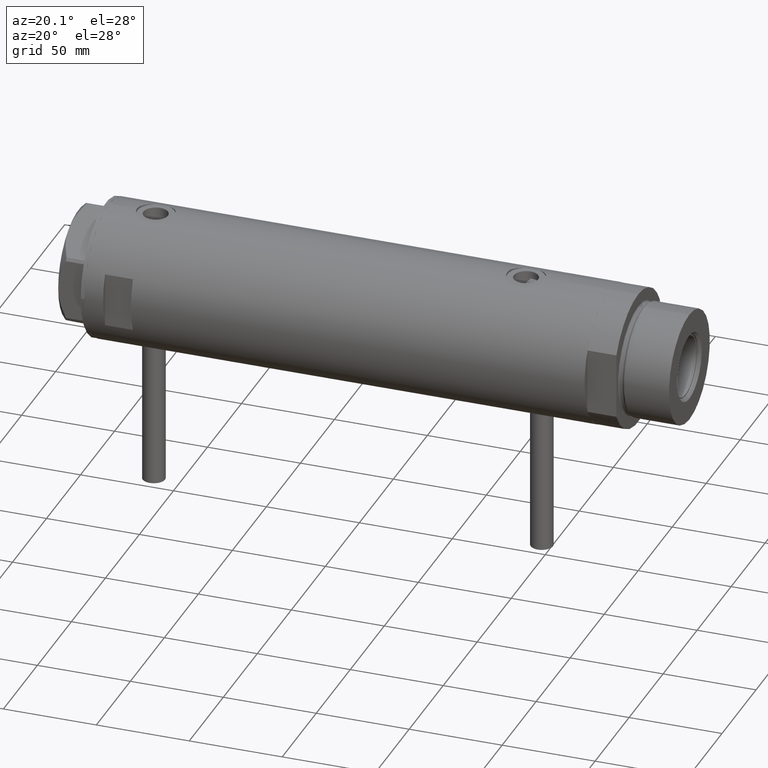
[diagram: clean part render]
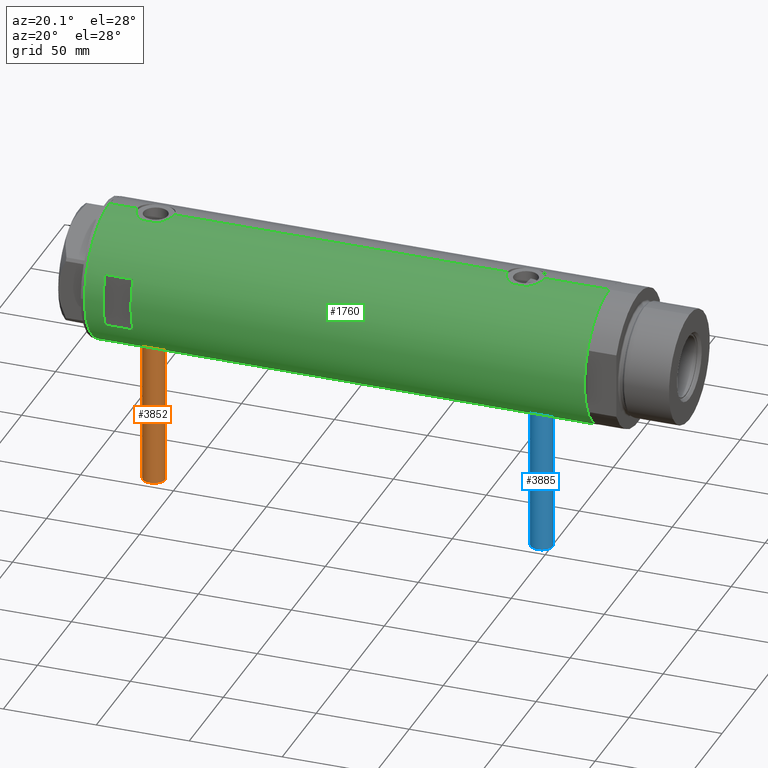
[diagram: same view with three faces highlighted in distinct colors, each labeled with its STEP entity id]
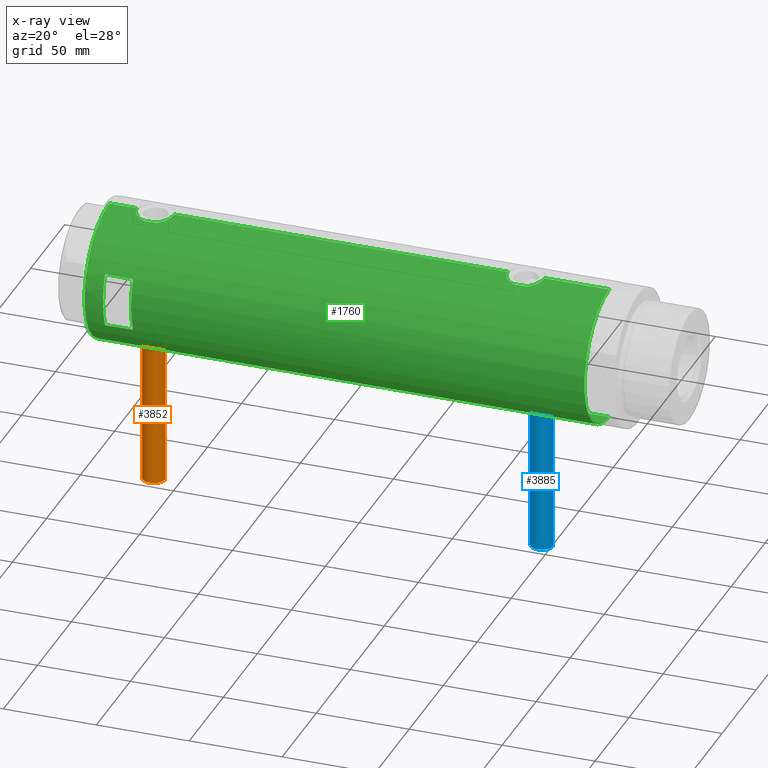
[diagram: x-ray of the same camera — body ghosted, the three highlighted faces saturated]
A machine part, auxiliary view with three faces highlighted in distinct colors.
The next image is the same camera in x-ray (body ghosted, the three faces saturated) — at least one of them is partly hidden behind the body in this view.
Their STEP definitions:

[orange] entity #3852 — the highlighted cylindrical surface (edge-blend (fillet) strip) has radius 6 mm, axis along (0, 0, 1).
#191 = CYLINDRICAL_SURFACE ( 'NONE', #1174, 5.999999999999991118 ) ;
#249 = AXIS2_PLACEMENT_3D ( 'NONE', #4109, #4474, #1155 ) ;
#304 = VECTOR ( 'NONE', #2562, 1000.000000000000000 ) ;
#314 = EDGE_CURVE ( 'NONE', #3477, #2372, #2982, .T. ) ;
#395 = EDGE_LOOP ( 'NONE', ( #3286, #3491, #4494, #1275 ) ) ;
#493 = FACE_OUTER_BOUND ( 'NONE', #395, .T. ) ;
#619 = DIRECTION ( 'NONE',  ( 1.000000000000000000, -0.000000000000000000, -0.000000000000000000 ) ) ;
#691 = AXIS2_PLACEMENT_3D ( 'NONE', #3736, #2994, #1888 ) ;
#1091 = CIRCLE ( 'NONE', #249, 5.999999999999991118 ) ;
#1155 = DIRECTION ( 'NONE',  ( 0.000000000000000000, 0.000000000000000000, 1.000000000000000000 ) ) ;
#1174 = AXIS2_PLACEMENT_3D ( 'NONE', #4560, #1238, #2733 ) ;
#1238 = DIRECTION ( 'NONE',  ( 1.000000000000000000, -0.000000000000000000, -0.000000000000000000 ) ) ;
#1273 = EDGE_CURVE ( 'NONE', #3477, #3349, #3562, .T. ) ;
#1275 = ORIENTED_EDGE ( 'NONE', *, *, #3354, .T. ) ;
#1486 = VECTOR ( 'NONE', #619, 1000.000000000000000 ) ;
#1512 = CARTESIAN_POINT ( 'NONE',  ( -116.0000000000000000, 0.000000000000000000, 104.5000000000000284 ) ) ;
#1746 = CARTESIAN_POINT ( 'NONE',  ( -35.29999999999999716, 7.347880794884101001E-16, 116.5000000000000000 ) ) ;
#1825 = CARTESIAN_POINT ( 'NONE',  ( -116.0000000000000000, 0.000000000000000000, 104.5000000000000284 ) ) ;
#1880 = CARTESIAN_POINT ( 'NONE',  ( -116.0000000000000000, 7.347880794884101001E-16, 116.5000000000000000 ) ) ;
#1888 = DIRECTION ( 'NONE',  ( 0.000000000000000000, 0.000000000000000000, 1.000000000000000000 ) ) ;
#2372 = VERTEX_POINT ( 'NONE', #2564 ) ;
#2562 = DIRECTION ( 'NONE',  ( 1.000000000000000000, -0.000000000000000000, -0.000000000000000000 ) ) ;
#2564 = CARTESIAN_POINT ( 'NONE',  ( -35.29999999999999716, 0.000000000000000000, 104.5000000000000284 ) ) ;
#2733 = DIRECTION ( 'NONE',  ( 0.000000000000000000, 0.000000000000000000, -1.000000000000000000 ) ) ;
#2982 = LINE ( 'NONE', #1512, #304 ) ;
#2994 = DIRECTION ( 'NONE',  ( -1.000000000000000000, 0.000000000000000000, 0.000000000000000000 ) ) ;
#3286 = ORIENTED_EDGE ( 'NONE', *, *, #4623, .F. ) ;
#3349 = VERTEX_POINT ( 'NONE', #1880 ) ;
#3354 = EDGE_CURVE ( 'NONE', #2372, #4007, #1091, .T. ) ;
#3477 = VERTEX_POINT ( 'NONE', #1825 ) ;
#3491 = ORIENTED_EDGE ( 'NONE', *, *, #1273, .F. ) ;
#3562 = CIRCLE ( 'NONE', #691, 5.999999999999991118 ) ;
#3736 = CARTESIAN_POINT ( 'NONE',  ( -116.0000000000000000, 0.000000000000000000, 110.5000000000000142 ) ) ;
#3852 = ADVANCED_FACE ( 'NONE', ( #493 ), #191, .T. ) ;
#4007 = VERTEX_POINT ( 'NONE', #1746 ) ;
#4109 = CARTESIAN_POINT ( 'NONE',  ( -35.29999999999999716, 0.000000000000000000, 110.5000000000000142 ) ) ;
#4249 = CARTESIAN_POINT ( 'NONE',  ( -116.0000000000000000, 7.347880794884104945E-16, 116.5000000000000000 ) ) ;
#4276 = LINE ( 'NONE', #4249, #1486 ) ;
#4474 = DIRECTION ( 'NONE',  ( -1.000000000000000000, 0.000000000000000000, 0.000000000000000000 ) ) ;
#4494 = ORIENTED_EDGE ( 'NONE', *, *, #314, .T. ) ;
#4560 = CARTESIAN_POINT ( 'NONE',  ( -116.0000000000000000, 0.000000000000000000, 110.5000000000000142 ) ) ;
#4623 = EDGE_CURVE ( 'NONE', #3349, #4007, #4276, .T. ) ;

[blue] entity #3885 — the highlighted cylindrical surface (edge-blend (fillet) strip) has radius 6 mm, axis along (0, 0, 1).
#7 = VERTEX_POINT ( 'NONE', #3326 ) ;
#125 = ORIENTED_EDGE ( 'NONE', *, *, #1832, .F. ) ;
#258 = DIRECTION ( 'NONE',  ( 0.000000000000000000, 0.000000000000000000, -1.000000000000000000 ) ) ;
#613 = CARTESIAN_POINT ( 'NONE',  ( -116.0000000000000000, 0.000000000000000000, -98.20000000000000284 ) ) ;
#888 = DIRECTION ( 'NONE',  ( 0.000000000000000000, 0.000000000000000000, 1.000000000000000000 ) ) ;
#1190 = EDGE_CURVE ( 'NONE', #4203, #1303, #3012, .T. ) ;
#1303 = VERTEX_POINT ( 'NONE', #2987 ) ;
#1368 = ORIENTED_EDGE ( 'NONE', *, *, #1190, .T. ) ;
#1407 = AXIS2_PLACEMENT_3D ( 'NONE', #613, #2905, #258 ) ;
#1462 = VECTOR ( 'NONE', #2546, 1000.000000000000000 ) ;
#1592 = CARTESIAN_POINT ( 'NONE',  ( -116.0000000000000000, 0.000000000000000000, -104.2000000000000171 ) ) ;
#1819 = FACE_OUTER_BOUND ( 'NONE', #3610, .T. ) ;
#1832 = EDGE_CURVE ( 'NONE', #1910, #7, #4402, .T. ) ;
#1910 = VERTEX_POINT ( 'NONE', #2574 ) ;
#1965 = ORIENTED_EDGE ( 'NONE', *, *, #3762, .T. ) ;
#2100 = EDGE_CURVE ( 'NONE', #4203, #1910, #4407, .T. ) ;
#2259 = DIRECTION ( 'NONE',  ( 1.000000000000000000, -0.000000000000000000, -0.000000000000000000 ) ) ;
#2316 = ORIENTED_EDGE ( 'NONE', *, *, #2100, .F. ) ;
#2396 = CARTESIAN_POINT ( 'NONE',  ( -116.0000000000000000, 0.000000000000000000, -98.20000000000000284 ) ) ;
#2546 = DIRECTION ( 'NONE',  ( 1.000000000000000000, -0.000000000000000000, -0.000000000000000000 ) ) ;
#2553 = VECTOR ( 'NONE', #2259, 1000.000000000000000 ) ;
#2574 = CARTESIAN_POINT ( 'NONE',  ( -116.0000000000000000, 7.347880794884119736E-16, -92.20000000000000284 ) ) ;
#2627 = CARTESIAN_POINT ( 'NONE',  ( -116.0000000000000000, 0.000000000000000000, -104.2000000000000171 ) ) ;
#2905 = DIRECTION ( 'NONE',  ( 1.000000000000000000, -0.000000000000000000, -0.000000000000000000 ) ) ;
#2953 = AXIS2_PLACEMENT_3D ( 'NONE', #2396, #4429, #3345 ) ;
#2962 = CIRCLE ( 'NONE', #3959, 6.000000000000005329 ) ;
#2987 = CARTESIAN_POINT ( 'NONE',  ( -35.29999999999999716, 0.000000000000000000, -104.2000000000000171 ) ) ;
#3012 = LINE ( 'NONE', #2627, #2553 ) ;
#3326 = CARTESIAN_POINT ( 'NONE',  ( -35.29999999999999716, 7.347880794884119736E-16, -92.20000000000000284 ) ) ;
#3345 = DIRECTION ( 'NONE',  ( 0.000000000000000000, 0.000000000000000000, 1.000000000000000000 ) ) ;
#3450 = DIRECTION ( 'NONE',  ( -1.000000000000000000, 0.000000000000000000, 0.000000000000000000 ) ) ;
#3610 = EDGE_LOOP ( 'NONE', ( #125, #2316, #1368, #1965 ) ) ;
#3635 = CARTESIAN_POINT ( 'NONE',  ( -116.0000000000000000, 7.347880794884122694E-16, -92.20000000000000284 ) ) ;
#3762 = EDGE_CURVE ( 'NONE', #1303, #7, #2962, .T. ) ;
#3885 = ADVANCED_FACE ( 'NONE', ( #1819 ), #4308, .T. ) ;
#3913 = CARTESIAN_POINT ( 'NONE',  ( -35.29999999999999716, 0.000000000000000000, -98.20000000000000284 ) ) ;
#3959 = AXIS2_PLACEMENT_3D ( 'NONE', #3913, #3450, #888 ) ;
#4203 = VERTEX_POINT ( 'NONE', #1592 ) ;
#4308 = CYLINDRICAL_SURFACE ( 'NONE', #1407, 6.000000000000005329 ) ;
#4402 = LINE ( 'NONE', #3635, #1462 ) ;
#4407 = CIRCLE ( 'NONE', #2953, 6.000000000000005329 ) ;
#4429 = DIRECTION ( 'NONE',  ( -1.000000000000000000, 0.000000000000000000, 0.000000000000000000 ) ) ;

[green] entity #1760 — the highlighted cylindrical surface (partial cylindrical patch) has radius 36.5 mm, axis along (-1, -0, 0).
#2 = DIRECTION ( 'NONE',  ( 0.000000000000000000, 0.000000000000000000, 1.000000000000000000 ) ) ;
#57 = CARTESIAN_POINT ( 'NONE',  ( 36.48988302519020266, -0.9927202255321166957, -79.73673010588699128 ) ) ;
#153 = CARTESIAN_POINT ( 'NONE',  ( 36.48960339336947101, -1.002724032967601708, 99.53775134026508908 ) ) ;
#156 = EDGE_CURVE ( 'NONE', #3370, #3010, #2472, .T. ) ;
#171 = ORIENTED_EDGE ( 'NONE', *, *, #2617, .F. ) ;
#172 = VECTOR ( 'NONE', #964, 1000.000000000000000 ) ;
#175 = AXIS2_PLACEMENT_3D ( 'NONE', #4167, #856, #3468 ) ;
#180 = AXIS2_PLACEMENT_3D ( 'NONE', #3041, #2995, #833 ) ;
#216 = CARTESIAN_POINT ( 'NONE',  ( -36.44454782745417276, -2.020757099930494682, -92.28214135579003141 ) ) ;
#219 = ORIENTED_EDGE ( 'NONE', *, *, #4731, .T. ) ;
#228 = CARTESIAN_POINT ( 'NONE',  ( 14.49137674618942739, -33.50000000000000000, -134.5000000000000000 ) ) ;
#234 = CARTESIAN_POINT ( 'NONE',  ( -36.40915499150419521, -2.580495338846545472, 104.8039498664452793 ) ) ;
#240 = ORIENTED_EDGE ( 'NONE', *, *, #4522, .T. ) ;
#264 = CARTESIAN_POINT ( 'NONE',  ( -36.09514898390870030, -5.426114745500164815, -95.07161347053862244 ) ) ;
#265 = DIRECTION ( 'NONE',  ( 0.000000000000000000, 0.000000000000000000, 1.000000000000000000 ) ) ;
#278 = CARTESIAN_POINT ( 'NONE',  ( -36.50000000000000000, 4.469960816887838430E-15, -134.5000000000000000 ) ) ;
#284 = CARTESIAN_POINT ( 'NONE',  ( -36.16125812922425098, -4.962923794285024393, -94.39553914089242426 ) ) ;
#296 = CARTESIAN_POINT ( 'NONE',  ( 36.18674680775578167, -4.776679548204626258, 118.2889231693124827 ) ) ;
#298 = EDGE_CURVE ( 'NONE', #1278, #1762, #498, .T. ) ;
#306 = CARTESIAN_POINT ( 'NONE',  ( -36.09582946723050867, -5.421573071064194060, -101.3360827837048816 ) ) ;
#322 = CARTESIAN_POINT ( 'NONE',  ( 36.34247810649306132, -3.420510937483959513, 118.9098651840172920 ) ) ;
#327 = VERTEX_POINT ( 'NONE', #758 ) ;
#342 = CARTESIAN_POINT ( 'NONE',  ( -36.44621655743049615, -2.016281777336074832, -104.1298297669911648 ) ) ;
#398 = CARTESIAN_POINT ( 'NONE',  ( -36.50000000000001421, -0.4136690418839317762, 116.7500000000000426 ) ) ;
#402 = DIRECTION ( 'NONE',  ( 0.000000000000000000, 0.000000000000000000, 1.000000000000000000 ) ) ;
#411 = ORIENTED_EDGE ( 'NONE', *, *, #1389, .T. ) ;
#437 = B_SPLINE_CURVE_WITH_KNOTS ( 'NONE', 3,
 ( #4238, #2414, #3638, #1115, #1450, #322, #1028, #747, #296, #3258, #727, #3234, #1380, #2926, #4733, #2551, #2181, #3678 ),
 .UNSPECIFIED., .F., .F.,
 ( 4, 2, 2, 2, 2, 2, 2, 2, 4 ),
 ( 0.01190956515753145012, 0.01339852714138290227, 0.01488748912523435441, 0.01637645110908580656, 0.01712093210101153090, 0.01786541309293725871, 0.01935437507678870739, 0.02084333706064015260, 0.02382126102834301526 ),
 .UNSPECIFIED. ) ;
#439 = CARTESIAN_POINT ( 'NONE',  ( 35.72583162417570435, -7.484316398521980496, -83.04957356280496583 ) ) ;
#490 = CARTESIAN_POINT ( 'NONE',  ( -36.50000000000000000, 1.603939656238031057E-15, 116.7500000000000142 ) ) ;
#498 = B_SPLINE_CURVE_WITH_KNOTS ( 'NONE', 3,
 ( #2151, #1812, #1788, #700, #342, #4752, #1425, #4379, #1063, #2544, #4016, #2177, #2883, #306, #3961, #3982, #2094, #599, #578, #1777, #4641, #3270, #1036, #1680, #4369, #2051, #2121, #4741, #264, #1415, #284, #2140, #3196, #4669, #2816, #2912, #990, #3536, #216, #3220, #2446, #3918, #3554, #1365 ),
 .UNSPECIFIED., .F., .F.,
 ( 4, 2, 2, 2, 2, 2, 2, 2, 2, 2, 2, 2, 2, 2, 2, 2, 2, 2, 2, 2, 2, 4 ),
 ( 0.01957644481942643136, 0.02079966591703043266, 0.02202288701463443049, 0.02263449756343642941, 0.02324610811223842832, 0.02446932920984242615, 0.02569255030744642398, 0.02691577140505042529, 0.02752738195385242420, 0.02813899250265442659, 0.02936221360025846605, 0.03058543469786250205, 0.03119704524666452178, 0.03180865579546654498, 0.03303187689307057751, 0.03364348744187262152, 0.03425509799067465166, 0.03547831908827869807, 0.03670154018588274447, 0.03731315073468477461, 0.03792476128348679781, 0.03914798238109084422 ),
 .UNSPECIFIED. ) ;
#509 = CARTESIAN_POINT ( 'NONE',  ( 35.93363298843768661, -6.415574104180976178, 101.8134852711111193 ) ) ;
#518 = DIRECTION ( 'NONE',  ( 0.000000000000000000, 0.000000000000000000, 1.000000000000000000 ) ) ;
#523 = VERTEX_POINT ( 'NONE', #2770 ) ;
#549 = VERTEX_POINT ( 'NONE', #3587 ) ;
#555 = ORIENTED_EDGE ( 'NONE', *, *, #3660, .F. ) ;
#578 = CARTESIAN_POINT ( 'NONE',  ( -35.98855750525641639, -6.088954600884530777, -99.62430226150171109 ) ) ;
#599 = CARTESIAN_POINT ( 'NONE',  ( -35.99695583620881933, -6.039273428153905776, -99.82224444987757295 ) ) ;
#604 = ORIENTED_EDGE ( 'NONE', *, *, #842, .T. ) ;
#639 = LINE ( 'NONE', #4272, #172 ) ;
#659 = CARTESIAN_POINT ( 'NONE',  ( 36.50000000000000000, 0.000000000000000000, -134.5000000000000000 ) ) ;
#672 = CARTESIAN_POINT ( 'NONE',  ( 36.41856252531823657, -2.482507212621166470, -99.39956512846499947 ) ) ;
#680 = CARTESIAN_POINT ( 'NONE',  ( 35.29999999999999716, -9.282241108697837362, 113.2202150475476401 ) ) ;
#681 = CARTESIAN_POINT ( 'NONE',  ( -36.36656776002988778, -3.137002187003158582, 115.9213640927363258 ) ) ;
#700 = CARTESIAN_POINT ( 'NONE',  ( -36.46614432713124643, -1.622933015999963313, -104.2496659738685025 ) ) ;
#727 = CARTESIAN_POINT ( 'NONE',  ( 36.09633718678917802, -5.417295330713078449, 117.9091486734521652 ) ) ;
#747 = CARTESIAN_POINT ( 'NONE',  ( 36.21540437201188922, -4.554727782332258279, 118.4059762908862723 ) ) ;
#754 = CARTESIAN_POINT ( 'NONE',  ( -35.96816095843705341, -6.208699946936198977, 109.6750362287221208 ) ) ;
#757 = DIRECTION ( 'NONE',  ( -1.000000000000000000, 0.000000000000000000, 0.000000000000000000 ) ) ;
#758 = CARTESIAN_POINT ( 'NONE',  ( 36.50000000000000000, 0.000000000000000000, 134.5000000000000000 ) ) ;
#770 = EDGE_CURVE ( 'NONE', #1099, #3989, #4220, .T. ) ;
#805 = EDGE_CURVE ( 'NONE', #2002, #1278, #4284, .T. ) ;
#833 = DIRECTION ( 'NONE',  ( 1.000000000000000000, 0.000000000000000000, 0.000000000000000000 ) ) ;
#842 = EDGE_CURVE ( 'NONE', #4020, #902, #3228, .T. ) ;
#854 = CARTESIAN_POINT ( 'NONE',  ( 36.41856252531823657, -2.482507212621166470, 99.80043487153494652 ) ) ;
#856 = DIRECTION ( 'NONE',  ( 0.000000000000000000, 0.000000000000000000, 1.000000000000000000 ) ) ;
#883 = CYLINDRICAL_SURFACE ( 'NONE', #1933, 36.50000000000000000 ) ;
#897 = LINE ( 'NONE', #3170, #1103 ) ;
#902 = VERTEX_POINT ( 'NONE', #1738 ) ;
#964 = DIRECTION ( 'NONE',  ( -0.000000000000000000, -0.000000000000000000, -1.000000000000000000 ) ) ;
#987 = CARTESIAN_POINT ( 'NONE',  ( -36.16096637594732499, -4.968588355849258953, 106.6866550718224289 ) ) ;
#990 = CARTESIAN_POINT ( 'NONE',  ( -36.39621039793029666, -2.776267550998806843, -92.58569246893225113 ) ) ;
#999 = DIRECTION ( 'NONE',  ( 0.000000000000000000, 0.000000000000000000, 1.000000000000000000 ) ) ;
#1028 = CARTESIAN_POINT ( 'NONE',  ( 36.29582892817134621, -3.881628320031159873, 118.7293443453498867 ) ) ;
#1036 = CARTESIAN_POINT ( 'NONE',  ( -35.96794010939611752, -6.209972807992079069, -97.38444451008646752 ) ) ;
#1045 = CARTESIAN_POINT ( 'NONE',  ( 35.93363298843768661, -6.415574104180976178, -97.38651472888892613 ) ) ;
#1053 = CARTESIAN_POINT ( 'NONE',  ( -36.21356728133255842, -4.566014386638764577, 114.7726266076475099 ) ) ;
#1063 = CARTESIAN_POINT ( 'NONE',  ( -36.35061318816141096, -3.303361544904982239, -103.5096404194301982 ) ) ;
#1072 = CARTESIAN_POINT ( 'NONE',  ( -36.46417279006304568, -1.628689148039109247, 116.5375393869381924 ) ) ;
#1095 = CARTESIAN_POINT ( 'NONE',  ( 36.50000000000000000, 4.344614706140975428E-19, -79.70000000000000284 ) ) ;
#1097 = CARTESIAN_POINT ( 'NONE',  ( -35.96794010939611752, -6.209972807992079069, 111.3155554899135637 ) ) ;
#1099 = VERTEX_POINT ( 'NONE', #490 ) ;
#1103 = VECTOR ( 'NONE', #265, 1000.000000000000000 ) ;
#1110 = DIRECTION ( 'NONE',  ( 0.000000000000000000, 0.000000000000000000, 1.000000000000000000 ) ) ;
#1115 = CARTESIAN_POINT ( 'NONE',  ( 36.44931971524465553, -1.985988150549293341, 119.3136686053176589 ) ) ;
#1130 = CARTESIAN_POINT ( 'NONE',  ( 36.41918031349423757, -2.473644131148923009, -79.99811654536809158 ) ) ;
#1136 = ORIENTED_EDGE ( 'NONE', *, *, #4711, .T. ) ;
#1157 = EDGE_CURVE ( 'NONE', #3128, #1578, #437, .T. ) ;
#1230 = CARTESIAN_POINT ( 'NONE',  ( 35.72742963626381396, -7.471989379615407323, 102.8493773958722528 ) ) ;
#1245 = CARTESIAN_POINT ( 'NONE',  ( 35.52323553852023963, -8.411295122831250026, -84.20247607048909799 ) ) ;
#1258 = CARTESIAN_POINT ( 'NONE',  ( 35.79656810172926384, -7.133411935499478496, 102.4874512144232312 ) ) ;
#1268 = CARTESIAN_POINT ( 'NONE',  ( -36.50000000000000000, 4.469960816887838430E-15, -134.5000000000000000 ) ) ;
#1270 = CARTESIAN_POINT ( 'NONE',  ( 0.000000000000000000, 0.000000000000000000, -134.5000000000000000 ) ) ;
#1278 = VERTEX_POINT ( 'NONE', #4121 ) ;
#1318 = CARTESIAN_POINT ( 'NONE',  ( -36.49315367594273596, -0.8144497809045447845, 104.2896021444524592 ) ) ;
#1322 = CARTESIAN_POINT ( 'NONE',  ( -14.49137674618942739, -33.50000000000000000, 124.5000000000000000 ) ) ;
#1327 = CIRCLE ( 'NONE', #2652, 36.50000000000000000 ) ;
#1335 = CARTESIAN_POINT ( 'NONE',  ( 36.29527920868844859, -3.886508670267145416, 100.2728372416913913 ) ) ;
#1343 = CARTESIAN_POINT ( 'NONE',  ( -36.26692673949090562, -4.128477002029503851, 105.7900001256783327 ) ) ;
#1363 = CARTESIAN_POINT ( 'NONE',  ( -36.30176144752229561, -3.814344296723636951, 105.5319829804974461 ) ) ;
#1365 = CARTESIAN_POINT ( 'NONE',  ( -36.50000000000000000, 1.603939656238031057E-15, -91.95000000000000284 ) ) ;
#1366 = DIRECTION ( 'NONE',  ( 1.000000000000000000, 0.000000000000000000, 0.000000000000000000 ) ) ;
#1380 = CARTESIAN_POINT ( 'NONE',  ( 35.93373217836897737, -6.415110096330620237, 117.1870426635508977 ) ) ;
#1389 = EDGE_CURVE ( 'NONE', #3128, #327, #3550, .T. ) ;
#1401 = CARTESIAN_POINT ( 'NONE',  ( 35.79656810172926384, -7.133411935499478496, -96.71254878557675738 ) ) ;
#1410 = CARTESIAN_POINT ( 'NONE',  ( -36.49297138689434661, -0.8222528563518530786, 116.7093311205343866 ) ) ;
#1415 = CARTESIAN_POINT ( 'NONE',  ( -36.14410773716529235, -5.085921866747754372, -94.56164121579531923 ) ) ;
#1425 = CARTESIAN_POINT ( 'NONE',  ( -36.39558535855674393, -2.764807686268001774, -103.8089411854560922 ) ) ;
#1430 = EDGE_LOOP ( 'NONE', ( #555, #4691, #3634, #4531 ) ) ;
#1450 = CARTESIAN_POINT ( 'NONE',  ( 36.41918031349423757, -2.473644131148923009, 119.2018834546318971 ) ) ;
#1455 = CARTESIAN_POINT ( 'NONE',  ( -36.09514898390870030, -5.426114745500164815, 113.6283865294614230 ) ) ;
#1467 = CARTESIAN_POINT ( 'NONE',  ( 36.21540437201188922, -4.554727782332258279, -80.79402370911373055 ) ) ;
#1520 = CARTESIAN_POINT ( 'NONE',  ( 35.79638309643555516, -7.141827709208434349, -82.68298073030452144 ) ) ;
#1536 = EDGE_CURVE ( 'NONE', #1762, #4723, #3289, .T. ) ;
#1543 = CARTESIAN_POINT ( 'NONE',  ( 35.29999999999999716, -9.282241108697837362, 105.7797849524523883 ) ) ;
#1578 = VERTEX_POINT ( 'NONE', #680 ) ;
#1605 = CARTESIAN_POINT ( 'NONE',  ( 36.09633718678917802, -5.417295330713078449, -81.29085132654788026 ) ) ;
#1644 = CARTESIAN_POINT ( 'NONE',  ( 35.29999999999999716, -9.282241108697837362, -85.97978495245237696 ) ) ;
#1680 = CARTESIAN_POINT ( 'NONE',  ( -35.98821803976956346, -6.090959022952117330, -96.78426116850583583 ) ) ;
#1693 = CARTESIAN_POINT ( 'NONE',  ( 35.39794035667548400, -8.909777761736840773, 104.8504584091054710 ) ) ;
#1703 = CARTESIAN_POINT ( 'NONE',  ( -36.39558535855674393, -2.764807686268001774, 104.8910588145438965 ) ) ;
#1706 = DIRECTION ( 'NONE',  ( 0.000000000000000000, 0.000000000000000000, 1.000000000000000000 ) ) ;
#1720 = DIRECTION ( 'NONE',  ( 0.000000000000000000, 0.000000000000000000, 1.000000000000000000 ) ) ;
#1728 = CARTESIAN_POINT ( 'NONE',  ( -36.02823773219768810, -5.849994928883552880, 108.2904489851435699 ) ) ;
#1738 = CARTESIAN_POINT ( 'NONE',  ( 36.50000000000000000, 0.000000000000000000, -99.70000000000000284 ) ) ;
#1739 = CARTESIAN_POINT ( 'NONE',  ( 35.52320828895289395, -8.411622242316134646, -95.19772865944611340 ) ) ;
#1760 = ADVANCED_FACE ( 'NONE', ( #2776, #2411 ), #883, .T. ) ;
#1762 = VERTEX_POINT ( 'NONE', #3138 ) ;
#1768 = CARTESIAN_POINT ( 'NONE',  ( -36.50000000000000000, 4.469960816887838430E-15, 134.5000000000000000 ) ) ;
#1769 = ORIENTED_EDGE ( 'NONE', *, *, #4588, .T. ) ;
#1777 = CARTESIAN_POINT ( 'NONE',  ( -35.96816095843705341, -6.208699946936198977, -99.02496377127785365 ) ) ;
#1788 = CARTESIAN_POINT ( 'NONE',  ( -36.49315367594273596, -0.8144497809045447845, -104.4103978555475152 ) ) ;
#1812 = CARTESIAN_POINT ( 'NONE',  ( -36.49999999999999289, -0.4082012689449562859, -104.4500000000000171 ) ) ;
#1821 = CARTESIAN_POINT ( 'NONE',  ( -35.96087392089862789, -6.250243747806517369, 110.9091749077618232 ) ) ;
#1833 = CARTESIAN_POINT ( 'NONE',  ( 36.50000000000000711, -0.4962708696651116913, -79.70000000000000284 ) ) ;
#1843 = CARTESIAN_POINT ( 'NONE',  ( -36.19599073318030236, -4.702920041824403263, 114.6215383167658501 ) ) ;
#1908 = EDGE_LOOP ( 'NONE', ( #2873, #219, #604, #3513, #1136, #3153, #240, #2063, #1769, #4307, #411, #2294, #2493, #171, #4761, #4780 ) ) ;
#1933 = AXIS2_PLACEMENT_3D ( 'NONE', #3211, #1720, #2804 ) ;
#1981 = CARTESIAN_POINT ( 'NONE',  ( 36.44881677724178104, -1.995085670027227032, 99.68819654630534899 ) ) ;
#2002 = VERTEX_POINT ( 'NONE', #2990 ) ;
#2037 = CARTESIAN_POINT ( 'NONE',  ( 36.12792682573228831, -5.214735277442335004, 100.9530688201130317 ) ) ;
#2051 = CARTESIAN_POINT ( 'NONE',  ( -36.01639592019625979, -5.922235714778421034, -96.19203197573087039 ) ) ;
#2063 = ORIENTED_EDGE ( 'NONE', *, *, #156, .F. ) ;
#2066 = CARTESIAN_POINT ( 'NONE',  ( -36.44621655743049615, -2.016281777336074832, 104.5701702330088523 ) ) ;
#2091 = CARTESIAN_POINT ( 'NONE',  ( -36.09582946723050867, -5.421573071064194060, 107.3639172162951922 ) ) ;
#2094 = CARTESIAN_POINT ( 'NONE',  ( -36.01675918113430441, -5.920026275461277798, -100.2143955651789611 ) ) ;
#2108 = CARTESIAN_POINT ( 'NONE',  ( 36.44881677724178104, -1.995085670027227032, -99.51180345369463964 ) ) ;
#2121 = CARTESIAN_POINT ( 'NONE',  ( -36.02782481185206365, -5.852531070448506512, -95.99722991047811149 ) ) ;
#2136 = DIRECTION ( 'NONE',  ( 0.000000000000000000, 0.000000000000000000, 1.000000000000000000 ) ) ;
#2137 = CARTESIAN_POINT ( 'NONE',  ( -36.14410773716529235, -5.085921866747754372, 114.1383587842047262 ) ) ;
#2140 = CARTESIAN_POINT ( 'NONE',  ( -36.19599073318030236, -4.702920041824403263, -94.07846168323423797 ) ) ;
#2151 = CARTESIAN_POINT ( 'NONE',  ( -36.50000000000000000, 4.469960493350315609E-15, -104.4500000000000171 ) ) ;
#2162 = CARTESIAN_POINT ( 'NONE',  ( -35.98821803976956346, -6.090959022952117330, 111.9157388314942239 ) ) ;
#2177 = CARTESIAN_POINT ( 'NONE',  ( -36.19666146462960654, -4.704890678739094945, -102.3342985951078532 ) ) ;
#2179 = CARTESIAN_POINT ( 'NONE',  ( 36.50000000000000000, 4.344614706140975428E-19, 119.5000000000000142 ) ) ;
#2181 = CARTESIAN_POINT ( 'NONE',  ( 35.39807338191549491, -8.909271871950329214, 114.1508038273278487 ) ) ;
#2182 = AXIS2_PLACEMENT_3D ( 'NONE', #1270, #1706, #1366 ) ;
#2230 = CARTESIAN_POINT ( 'NONE',  ( -36.47262891311153510, -1.427622242603855396, 116.5882462921170344 ) ) ;
#2240 = VECTOR ( 'NONE', #2136, 1000.000000000000000 ) ;
#2281 = CARTESIAN_POINT ( 'NONE',  ( 36.34247810649306132, -3.420510937483959513, -80.29013481598276769 ) ) ;
#2294 = ORIENTED_EDGE ( 'NONE', *, *, #2916, .F. ) ;
#2336 = CARTESIAN_POINT ( 'NONE',  ( 36.50000000000000711, -0.5031001875915692700, 99.50000000000004263 ) ) ;
#2411 = FACE_BOUND ( 'NONE', #1430, .T. ) ;
#2414 = CARTESIAN_POINT ( 'NONE',  ( 36.50000000000000711, -0.4962708696651116913, 119.5000000000000284 ) ) ;
#2436 = CARTESIAN_POINT ( 'NONE',  ( 36.50000000000000000, 0.000000000000000000, 99.50000000000001421 ) ) ;
#2446 = CARTESIAN_POINT ( 'NONE',  ( -36.47262891311153510, -1.427622242603855396, -92.11175370788301109 ) ) ;
#2452 = CARTESIAN_POINT ( 'NONE',  ( 36.50000000000000000, 0.000000000000000000, -134.5000000000000000 ) ) ;
#2472 = B_SPLINE_CURVE_WITH_KNOTS ( 'NONE', 3,
 ( #3081, #1693, #4627, #3831, #1230, #1258, #3465, #509, #2726, #2037, #3855, #1335, #4165, #854, #1981, #153, #2336, #4187 ),
 .UNSPECIFIED., .F., .F.,
 ( 4, 2, 2, 2, 2, 2, 2, 2, 4 ),
 ( -0.01189883390545606531, -0.008924125429092034240, -0.008180448310001031675, -0.007436771190910029979, -0.005949416952728023983, -0.004462062714546017987, -0.002974708476364010257, -0.001487354238182005128, 1.734723475976807094E-18 ),
 .UNSPECIFIED. ) ;
#2476 = VECTOR ( 'NONE', #4352, 1000.000000000000000 ) ;
#2493 = ORIENTED_EDGE ( 'NONE', *, *, #770, .F. ) ;
#2503 = CARTESIAN_POINT ( 'NONE',  ( 35.29999999999999716, -9.282241108697837362, -93.42021504754762873 ) ) ;
#2534 = CARTESIAN_POINT ( 'NONE',  ( -36.39621039793029666, -2.776267550998806843, 116.1143075310677801 ) ) ;
#2543 = CARTESIAN_POINT ( 'NONE',  ( 36.50000000000000000, 0.000000000000000000, -99.70000000000000284 ) ) ;
#2544 = CARTESIAN_POINT ( 'NONE',  ( -36.30176144752229561, -3.814344296723636951, -103.1680170195025568 ) ) ;
#2547 = EDGE_CURVE ( 'NONE', #4744, #2902, #639, .T. ) ;
#2551 = CARTESIAN_POINT ( 'NONE',  ( 35.52323553852023963, -8.411295122831250026, 114.9975239295108622 ) ) ;
#2573 = LINE ( 'NONE', #4037, #3202 ) ;
#2584 = CARTESIAN_POINT ( 'NONE',  ( -36.44454782745417276, -2.020757099930494682, 116.4178586442100141 ) ) ;
#2598 = VERTEX_POINT ( 'NONE', #3915 ) ;
#2617 = EDGE_CURVE ( 'NONE', #4723, #1099, #3878, .T. ) ;
#2623 = CARTESIAN_POINT ( 'NONE',  ( 36.00092304812866217, -6.029438422680412302, -81.70691844426347927 ) ) ;
#2649 = CARTESIAN_POINT ( 'NONE',  ( 36.18674680775578167, -4.776679548204626258, -80.91107683068753431 ) ) ;
#2652 = AXIS2_PLACEMENT_3D ( 'NONE', #4465, #402, #757 ) ;
#2703 = CARTESIAN_POINT ( 'NONE',  ( -14.49137674618942739, -33.50000000000000000, 109.4999999999999858 ) ) ;
#2717 = VECTOR ( 'NONE', #3933, 1000.000000000000000 ) ;
#2726 = CARTESIAN_POINT ( 'NONE',  ( 36.00068527486601511, -6.030855700422090848, 101.5079867287264932 ) ) ;
#2770 = CARTESIAN_POINT ( 'NONE',  ( 35.29999999999999716, -9.282241108697837362, -93.42021504754762873 ) ) ;
#2776 = FACE_OUTER_BOUND ( 'NONE', #1908, .T. ) ;
#2804 = DIRECTION ( 'NONE',  ( 1.000000000000000000, 0.000000000000000000, 0.000000000000000000 ) ) ;
#2811 = CARTESIAN_POINT ( 'NONE',  ( -36.46614432713124643, -1.622933015999963313, 104.4503340261315287 ) ) ;
#2816 = CARTESIAN_POINT ( 'NONE',  ( -36.30107494031872051, -3.820993528321233068, -93.23693846463693546 ) ) ;
#2836 = CARTESIAN_POINT ( 'NONE',  ( -36.19666146462960654, -4.704890678739094945, 106.3657014048921781 ) ) ;
#2853 = CARTESIAN_POINT ( 'NONE',  ( -35.98855750525641639, -6.088954600884530777, 109.0756977384983628 ) ) ;
#2865 = VECTOR ( 'NONE', #999, 1000.000000000000000 ) ;
#2873 = ORIENTED_EDGE ( 'NONE', *, *, #805, .F. ) ;
#2883 = CARTESIAN_POINT ( 'NONE',  ( -36.16096637594732499, -4.968588355849258953, -102.0133449281776166 ) ) ;
#2897 = CARTESIAN_POINT ( 'NONE',  ( 36.48960339336947101, -1.002724032967601708, -99.66224865973498481 ) ) ;
#2902 = VERTEX_POINT ( 'NONE', #2703 ) ;
#2908 = CARTESIAN_POINT ( 'NONE',  ( -36.01639592019625979, -5.922235714778421034, 112.5079680242691467 ) ) ;
#2912 = CARTESIAN_POINT ( 'NONE',  ( -36.36656776002988778, -3.137002187003158582, -92.77863590726371967 ) ) ;
#2916 = EDGE_CURVE ( 'NONE', #3989, #327, #4654, .T. ) ;
#2921 = EDGE_CURVE ( 'NONE', #549, #2598, #4683, .T. ) ;
#2926 = CARTESIAN_POINT ( 'NONE',  ( 35.79638309643555516, -7.141827709208434349, 116.5170192696954672 ) ) ;
#2939 = CARTESIAN_POINT ( 'NONE',  ( 36.29582892817134621, -3.881628320031159873, -80.47065565465010195 ) ) ;
#2963 = CARTESIAN_POINT ( 'NONE',  ( 36.12724769814495573, -5.207618053557754756, -81.15935879511536655 ) ) ;
#2989 = CARTESIAN_POINT ( 'NONE',  ( 36.44931971524465553, -1.985988150549293341, -79.88633139468231548 ) ) ;
#2990 = CARTESIAN_POINT ( 'NONE',  ( -36.50000000000000000, 4.469960816887838430E-15, -134.5000000000000000 ) ) ;
#2995 = DIRECTION ( 'NONE',  ( -0.000000000000000000, 0.000000000000000000, -1.000000000000000000 ) ) ;
#3007 = CARTESIAN_POINT ( 'NONE',  ( 35.39807338191549491, -8.909271871950329214, -85.04919617267215415 ) ) ;
#3010 = VERTEX_POINT ( 'NONE', #2436 ) ;
#3041 = CARTESIAN_POINT ( 'NONE',  ( 0.000000000000000000, 0.000000000000000000, 124.5000000000000000 ) ) ;
#3049 = CIRCLE ( 'NONE', #2182, 36.50000000000000000 ) ;
#3081 = CARTESIAN_POINT ( 'NONE',  ( 35.29999999999999716, -9.282241108697837362, 105.7797849524523883 ) ) ;
#3124 = VECTOR ( 'NONE', #2, 1000.000000000000000 ) ;
#3128 = VERTEX_POINT ( 'NONE', #2179 ) ;
#3138 = CARTESIAN_POINT ( 'NONE',  ( -36.50000000000000000, 1.603939656238031057E-15, -91.95000000000000284 ) ) ;
#3153 = ORIENTED_EDGE ( 'NONE', *, *, #4544, .F. ) ;
#3167 = CARTESIAN_POINT ( 'NONE',  ( -36.49999999999999289, -0.4082012689449562859, 104.2500000000000426 ) ) ;
#3170 = CARTESIAN_POINT ( 'NONE',  ( 35.29999999999999716, -9.282241108697837362, -134.5000000000000000 ) ) ;
#3193 = CARTESIAN_POINT ( 'NONE',  ( -36.36635911126388265, -3.125815113635437292, 105.0839439959209898 ) ) ;
#3196 = CARTESIAN_POINT ( 'NONE',  ( -36.21356728133255842, -4.566014386638764577, -93.92737339235254979 ) ) ;
#3202 = VECTOR ( 'NONE', #1110, 1000.000000000000000 ) ;
#3211 = CARTESIAN_POINT ( 'NONE',  ( 0.000000000000000000, 0.000000000000000000, -134.5000000000000000 ) ) ;
#3217 = CARTESIAN_POINT ( 'NONE',  ( -36.01675918113430441, -5.920026275461277798, 108.4856044348210986 ) ) ;
#3220 = CARTESIAN_POINT ( 'NONE',  ( -36.46417279006304568, -1.628689148039109247, -92.16246061306185311 ) ) ;
#3228 = LINE ( 'NONE', #2452, #2865 ) ;
#3234 = CARTESIAN_POINT ( 'NONE',  ( 36.00092304812866217, -6.029438422680412302, 117.4930815557365094 ) ) ;
#3254 = CARTESIAN_POINT ( 'NONE',  ( 35.69273631926343882, -7.635692914629149008, -96.16200195651489935 ) ) ;
#3258 = CARTESIAN_POINT ( 'NONE',  ( 36.12724769814495573, -5.207618053557754756, 118.0406412048846505 ) ) ;
#3264 = CARTESIAN_POINT ( 'NONE',  ( -36.26616882068471170, -4.135065845178865551, 115.2041505594009863 ) ) ;
#3270 = CARTESIAN_POINT ( 'NONE',  ( -35.96087392089862789, -6.250243747806517369, -97.79082509223820807 ) ) ;
#3276 = CIRCLE ( 'NONE', #180, 36.50000000000000000 ) ;
#3281 = CARTESIAN_POINT ( 'NONE',  ( 36.34184199234172041, -3.427106516421255744, -99.10740913680032804 ) ) ;
#3289 = LINE ( 'NONE', #278, #2240 ) ;
#3290 = CARTESIAN_POINT ( 'NONE',  ( -36.30107494031872051, -3.820993528321233068, 115.4630615353631384 ) ) ;
#3308 = CARTESIAN_POINT ( 'NONE',  ( -36.50000000000000000, 1.603939656238031057E-15, 116.7500000000000142 ) ) ;
#3356 = CARTESIAN_POINT ( 'NONE',  ( -35.96095902952617251, -6.249754054240900913, 110.0834123457953098 ) ) ;
#3370 = VERTEX_POINT ( 'NONE', #1543 ) ;
#3372 = CARTESIAN_POINT ( 'NONE',  ( 36.50000000000000000, 0.000000000000000000, -134.5000000000000000 ) ) ;
#3465 = CARTESIAN_POINT ( 'NONE',  ( 35.83108131285856501, -6.958268797611358636, 102.3136921662717924 ) ) ;
#3468 = DIRECTION ( 'NONE',  ( 1.000000000000000000, 0.000000000000000000, 0.000000000000000000 ) ) ;
#3513 = ORIENTED_EDGE ( 'NONE', *, *, #4426, .F. ) ;
#3536 = CARTESIAN_POINT ( 'NONE',  ( -36.43335814606993495, -2.212659578761325463, -92.35123600830490886 ) ) ;
#3550 = LINE ( 'NONE', #3863, #2717 ) ;
#3554 = CARTESIAN_POINT ( 'NONE',  ( -36.50000000000001421, -0.4136690418839317762, -91.95000000000003126 ) ) ;
#3572 = DIRECTION ( 'NONE',  ( 0.000000000000000000, 0.000000000000000000, 1.000000000000000000 ) ) ;
#3574 = VECTOR ( 'NONE', #3572, 1000.000000000000000 ) ;
#3577 = CARTESIAN_POINT ( 'NONE',  ( -36.06605150775667568, -5.613853192123348101, 107.7223431172745904 ) ) ;
#3587 = CARTESIAN_POINT ( 'NONE',  ( 14.49137674618942739, -33.50000000000000000, 109.4999999999999858 ) ) ;
#3595 = CARTESIAN_POINT ( 'NONE',  ( 36.12792682573228831, -5.214735277442335004, -98.24693117988699953 ) ) ;
#3612 = CARTESIAN_POINT ( 'NONE',  ( 36.29527920868844859, -3.886508670267145416, -98.92716275830861150 ) ) ;
#3634 = ORIENTED_EDGE ( 'NONE', *, *, #4081, .F. ) ;
#3638 = CARTESIAN_POINT ( 'NONE',  ( 36.48988302519020266, -0.9927202255321166957, 119.4632698941130116 ) ) ;
#3660 = EDGE_CURVE ( 'NONE', #2902, #549, #1327, .T. ) ;
#3678 = CARTESIAN_POINT ( 'NONE',  ( 35.29999999999999716, -9.282241108697837362, 113.2202150475476401 ) ) ;
#3831 = CARTESIAN_POINT ( 'NONE',  ( 35.69273631926343882, -7.635692914629149008, 103.0379980434851177 ) ) ;
#3855 = CARTESIAN_POINT ( 'NONE',  ( 36.18850502651835654, -4.779575967213809840, 100.7022084710984586 ) ) ;
#3863 = CARTESIAN_POINT ( 'NONE',  ( 36.50000000000000000, 0.000000000000000000, -134.5000000000000000 ) ) ;
#3878 = B_SPLINE_CURVE_WITH_KNOTS ( 'NONE', 3,
 ( #4636, #3167, #1318, #2811, #2066, #234, #1703, #3193, #4664, #1363, #1343, #2836, #987, #2091, #3577, #1728, #3217, #4687, #2853, #754, #3356, #1821, #1097, #2162, #4026, #2908, #4365, #3979, #1455, #2137, #4073, #1843, #1053, #3264, #3290, #681, #2534, #4737, #2584, #1072, #2230, #1410, #398, #3308 ),
 .UNSPECIFIED., .F., .F.,
 ( 4, 2, 2, 2, 2, 2, 2, 2, 2, 2, 2, 2, 2, 2, 2, 2, 2, 2, 2, 2, 2, 4 ),
 ( 0.01957644481942643136, 0.02079966591703043266, 0.02202288701463443049, 0.02263449756343642941, 0.02324610811223842832, 0.02446932920984242615, 0.02569255030744642398, 0.02691577140505042529, 0.02752738195385242420, 0.02813899250265442659, 0.02936221360025846605, 0.03058543469786250205, 0.03119704524666452178, 0.03180865579546654498, 0.03303187689307057751, 0.03364348744187262152, 0.03425509799067465166, 0.03547831908827869807, 0.03670154018588274447, 0.03731315073468477461, 0.03792476128348679781, 0.03914798238109084422 ),
 .UNSPECIFIED. ) ;
#3915 = CARTESIAN_POINT ( 'NONE',  ( 14.49137674618942739, -33.50000000000000000, 124.5000000000000000 ) ) ;
#3918 = CARTESIAN_POINT ( 'NONE',  ( -36.49297138689434661, -0.8222528563518530786, -91.99066887946570148 ) ) ;
#3933 = DIRECTION ( 'NONE',  ( 0.000000000000000000, 0.000000000000000000, 1.000000000000000000 ) ) ;
#3947 = CARTESIAN_POINT ( 'NONE',  ( 35.83108131285856501, -6.958268797611358636, -96.88630783372826727 ) ) ;
#3961 = CARTESIAN_POINT ( 'NONE',  ( -36.06605150775667568, -5.613853192123348101, -100.9776568827254550 ) ) ;
#3979 = CARTESIAN_POINT ( 'NONE',  ( -36.06543684817881257, -5.617774235967367247, 113.2695444797170126 ) ) ;
#3982 = CARTESIAN_POINT ( 'NONE',  ( -36.02823773219768810, -5.849994928883552880, -100.4095510148564330 ) ) ;
#3989 = VERTEX_POINT ( 'NONE', #1768 ) ;
#3991 = CARTESIAN_POINT ( 'NONE',  ( 36.00068527486601511, -6.030855700422090848, -97.69201327127355228 ) ) ;
#4016 = CARTESIAN_POINT ( 'NONE',  ( -36.26692673949090562, -4.128477002029503851, -102.9099998743216560 ) ) ;
#4020 = VERTEX_POINT ( 'NONE', #659 ) ;
#4026 = CARTESIAN_POINT ( 'NONE',  ( -35.99659093586380010, -6.041447834568799635, 112.1142241201482364 ) ) ;
#4037 = CARTESIAN_POINT ( 'NONE',  ( 35.29999999999999716, -9.282241108697837362, -134.5000000000000000 ) ) ;
#4048 = VERTEX_POINT ( 'NONE', #1095 ) ;
#4073 = CARTESIAN_POINT ( 'NONE',  ( -36.16125812922425098, -4.962923794285024393, 114.3044608591076496 ) ) ;
#4081 = EDGE_CURVE ( 'NONE', #2598, #4744, #3276, .T. ) ;
#4085 = LINE ( 'NONE', #3372, #3124 ) ;
#4115 = CARTESIAN_POINT ( 'NONE',  ( 35.29999999999999716, -9.282241108697837362, -85.97978495245237696 ) ) ;
#4121 = CARTESIAN_POINT ( 'NONE',  ( -36.50000000000000000, 4.469960493350315609E-15, -104.4500000000000171 ) ) ;
#4165 = CARTESIAN_POINT ( 'NONE',  ( 36.34184199234172041, -3.427106516421255744, 100.0925908631997032 ) ) ;
#4167 = CARTESIAN_POINT ( 'NONE',  ( 0.000000000000000000, 0.000000000000000000, 134.5000000000000000 ) ) ;
#4187 = CARTESIAN_POINT ( 'NONE',  ( 36.50000000000000000, 0.000000000000000000, 99.50000000000001421 ) ) ;
#4214 = VERTEX_POINT ( 'NONE', #1644 ) ;
#4220 = LINE ( 'NONE', #1268, #4315 ) ;
#4238 = CARTESIAN_POINT ( 'NONE',  ( 36.50000000000000000, 4.344614706140975428E-19, 119.5000000000000142 ) ) ;
#4272 = CARTESIAN_POINT ( 'NONE',  ( -14.49137674618942739, -33.50000000000000000, -134.5000000000000000 ) ) ;
#4284 = LINE ( 'NONE', #4375, #2476 ) ;
#4286 = CARTESIAN_POINT ( 'NONE',  ( 36.50000000000000711, -0.5031001875915692700, -99.70000000000003126 ) ) ;
#4307 = ORIENTED_EDGE ( 'NONE', *, *, #1157, .F. ) ;
#4315 = VECTOR ( 'NONE', #518, 1000.000000000000000 ) ;
#4352 = DIRECTION ( 'NONE',  ( 0.000000000000000000, 0.000000000000000000, 1.000000000000000000 ) ) ;
#4365 = CARTESIAN_POINT ( 'NONE',  ( -36.02782481185206365, -5.852531070448506512, 112.7027700895219198 ) ) ;
#4369 = CARTESIAN_POINT ( 'NONE',  ( -35.99659093586380010, -6.041447834568799635, -96.58577587985176649 ) ) ;
#4375 = CARTESIAN_POINT ( 'NONE',  ( -36.50000000000000000, 4.469960816887838430E-15, -134.5000000000000000 ) ) ;
#4378 = CARTESIAN_POINT ( 'NONE',  ( 36.18850502651835654, -4.779575967213809840, -98.49779152890150158 ) ) ;
#4379 = CARTESIAN_POINT ( 'NONE',  ( -36.36635911126388265, -3.125815113635437292, -103.6160560040790841 ) ) ;
#4401 = CARTESIAN_POINT ( 'NONE',  ( 35.93373217836897737, -6.415110096330620237, -82.01295733644907671 ) ) ;
#4426 = EDGE_CURVE ( 'NONE', #523, #902, #4720, .T. ) ;
#4433 = B_SPLINE_CURVE_WITH_KNOTS ( 'NONE', 3,
 ( #4567, #1833, #57, #2989, #1130, #2281, #2939, #1467, #2649, #2963, #1605, #2623, #4401, #1520, #439, #1245, #3007, #4115 ),
 .UNSPECIFIED., .F., .F.,
 ( 4, 2, 2, 2, 2, 2, 2, 2, 4 ),
 ( 0.01190956515753145012, 0.01339852714138290227, 0.01488748912523435441, 0.01637645110908580656, 0.01712093210101153090, 0.01786541309293725871, 0.01935437507678870739, 0.02084333706064015260, 0.02382126102834301526 ),
 .UNSPECIFIED. ) ;
#4465 = CARTESIAN_POINT ( 'NONE',  ( 0.000000000000000000, 0.000000000000000000, 109.4999999999999858 ) ) ;
#4522 = EDGE_CURVE ( 'NONE', #4048, #3010, #4085, .T. ) ;
#4531 = ORIENTED_EDGE ( 'NONE', *, *, #2921, .F. ) ;
#4544 = EDGE_CURVE ( 'NONE', #4048, #4214, #4433, .T. ) ;
#4567 = CARTESIAN_POINT ( 'NONE',  ( 36.50000000000000000, 4.344614706140975428E-19, -79.70000000000000284 ) ) ;
#4588 = EDGE_CURVE ( 'NONE', #3370, #1578, #2573, .T. ) ;
#4627 = CARTESIAN_POINT ( 'NONE',  ( 35.52320828895289395, -8.411622242316134646, 104.0022713405538894 ) ) ;
#4636 = CARTESIAN_POINT ( 'NONE',  ( -36.50000000000000000, 4.469960493350315609E-15, 104.2500000000000142 ) ) ;
#4641 = CARTESIAN_POINT ( 'NONE',  ( -35.96095902952617251, -6.249754054240900913, -98.61658765420467887 ) ) ;
#4642 = CARTESIAN_POINT ( 'NONE',  ( -36.50000000000000000, 4.469960493350315609E-15, 104.2500000000000142 ) ) ;
#4654 = CIRCLE ( 'NONE', #175, 36.50000000000000000 ) ;
#4664 = CARTESIAN_POINT ( 'NONE',  ( -36.35061318816141096, -3.303361544904982239, 105.1903595805698330 ) ) ;
#4669 = CARTESIAN_POINT ( 'NONE',  ( -36.26616882068471170, -4.135065845178865551, -93.49584944059907343 ) ) ;
#4678 = CARTESIAN_POINT ( 'NONE',  ( 35.39794035667548400, -8.909777761736840773, -94.34954159089454606 ) ) ;
#4683 = LINE ( 'NONE', #228, #3574 ) ;
#4687 = CARTESIAN_POINT ( 'NONE',  ( -35.99695583620881933, -6.039273428153905776, 108.8777555501224725 ) ) ;
#4691 = ORIENTED_EDGE ( 'NONE', *, *, #2547, .F. ) ;
#4711 = EDGE_CURVE ( 'NONE', #523, #4214, #897, .T. ) ;
#4720 = B_SPLINE_CURVE_WITH_KNOTS ( 'NONE', 3,
 ( #2503, #4678, #1739, #3254, #4726, #1401, #3947, #1045, #3991, #3595, #4378, #3612, #3281, #672, #2108, #2897, #4286, #2543 ),
 .UNSPECIFIED., .F., .F.,
 ( 4, 2, 2, 2, 2, 2, 2, 2, 4 ),
 ( -0.01189883390545606531, -0.008924125429092034240, -0.008180448310001031675, -0.007436771190910029979, -0.005949416952728023983, -0.004462062714546017987, -0.002974708476364010257, -0.001487354238182005128, 1.734723475976807094E-18 ),
 .UNSPECIFIED. ) ;
#4723 = VERTEX_POINT ( 'NONE', #4642 ) ;
#4726 = CARTESIAN_POINT ( 'NONE',  ( 35.72742963626381396, -7.471989379615407323, -96.35062260412776425 ) ) ;
#4731 = EDGE_CURVE ( 'NONE', #2002, #4020, #3049, .T. ) ;
#4733 = CARTESIAN_POINT ( 'NONE',  ( 35.72583162417570435, -7.484316398521980496, 116.1504264371950228 ) ) ;
#4737 = CARTESIAN_POINT ( 'NONE',  ( -36.43335814606993495, -2.212659578761325463, 116.3487639916951082 ) ) ;
#4741 = CARTESIAN_POINT ( 'NONE',  ( -36.06543684817881257, -5.617774235967367247, -95.43045552028301870 ) ) ;
#4744 = VERTEX_POINT ( 'NONE', #1322 ) ;
#4752 = CARTESIAN_POINT ( 'NONE',  ( -36.40915499150419521, -2.580495338846545472, -103.8960501335547661 ) ) ;
#4761 = ORIENTED_EDGE ( 'NONE', *, *, #1536, .F. ) ;
#4780 = ORIENTED_EDGE ( 'NONE', *, *, #298, .F. ) ;